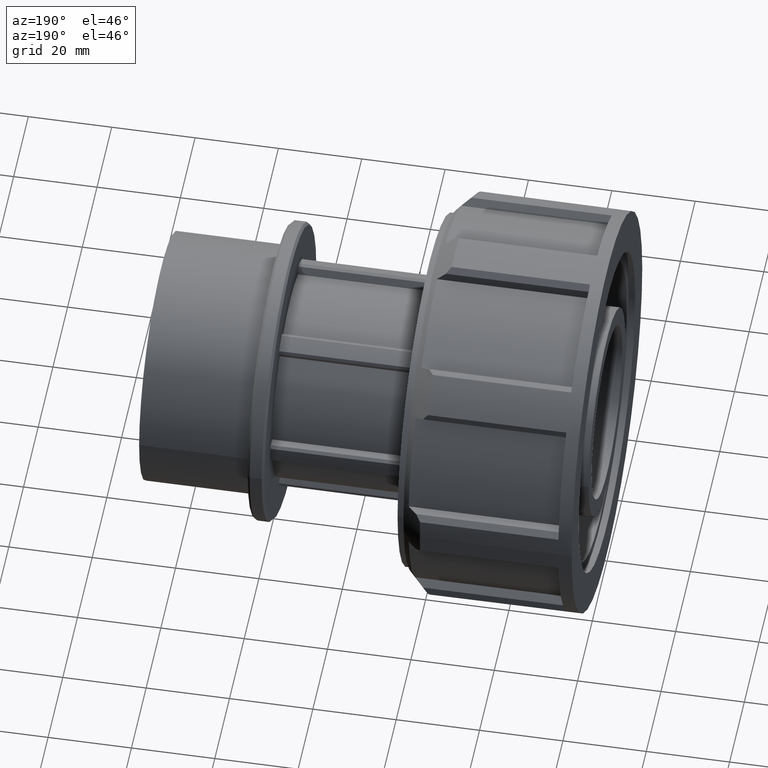
[diagram: clean part render]
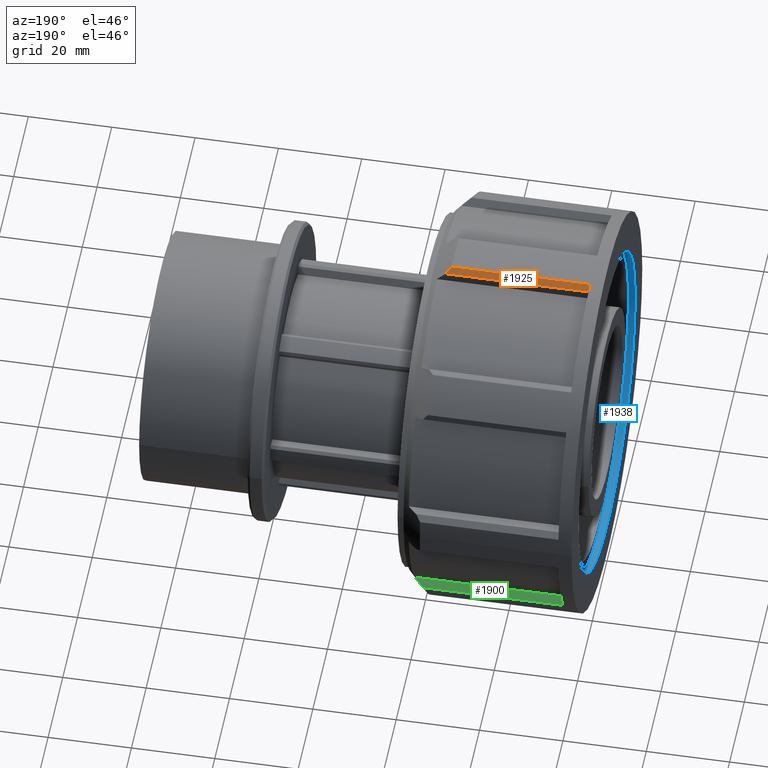
[diagram: same view with three faces highlighted in distinct colors, each labeled with its STEP entity id]
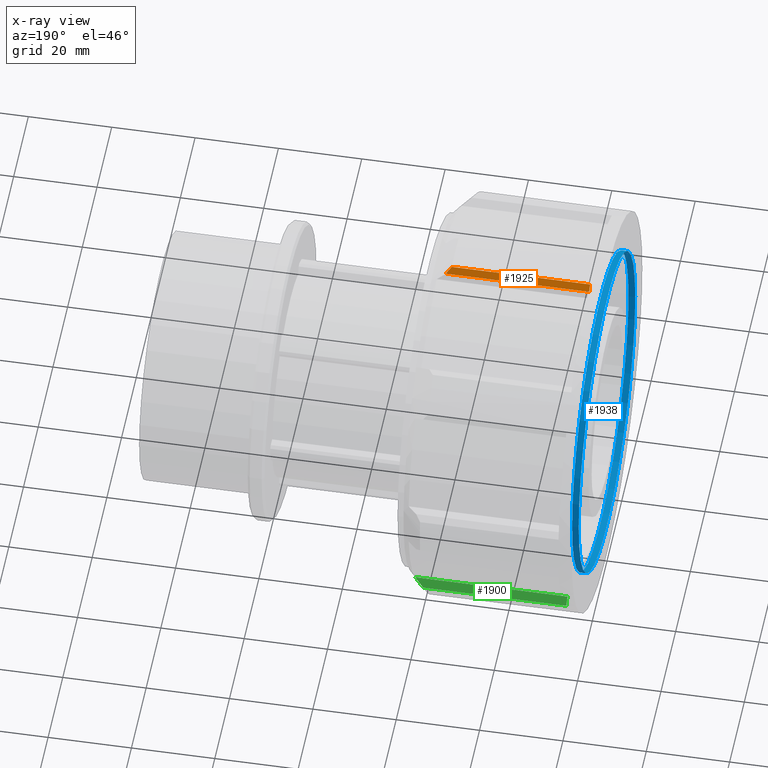
[diagram: x-ray of the same camera — body ghosted, the three highlighted faces saturated]
A machine part, auxiliary view with three faces highlighted in distinct colors.
The next image is the same camera in x-ray (body ghosted, the three faces saturated) — at least one of them is partly hidden behind the body in this view.
Their STEP definitions:

[orange] entity #1925 — the highlighted planar face has unit normal (0, 0.7456, 0.6664).
#19=(
BOUNDED_CURVE()
B_SPLINE_CURVE(2,(#2937,#2938,#2939),.UNSPECIFIED.,.F.,.F.)
B_SPLINE_CURVE_WITH_KNOTS((3,3),(0.,0.2014605576497),.UNSPECIFIED.)
CURVE()
GEOMETRIC_REPRESENTATION_ITEM()
RATIONAL_B_SPLINE_CURVE((1.,1.00078288374613,1.0012142177064))
REPRESENTATION_ITEM('')
);
#271=FACE_OUTER_BOUND('',#388,.T.);
#388=EDGE_LOOP('',(#1713,#1714,#1715,#1716));
#523=LINE('',#3112,#687);
#581=LINE('',#3242,#745);
#585=LINE('',#3261,#749);
#687=VECTOR('',#2435,33.21588);
#745=VECTOR('',#2575,1.7779472105731);
#749=VECTOR('',#2605,34.398694868908);
#838=VERTEX_POINT('',#2932);
#839=VERTEX_POINT('',#2936);
#894=VERTEX_POINT('',#3111);
#925=VERTEX_POINT('',#3241);
#1065=EDGE_CURVE('',#839,#838,#19,.T.);
#1128=EDGE_CURVE('',#894,#839,#523,.T.);
#1193=EDGE_CURVE('',#925,#894,#581,.F.);
#1200=EDGE_CURVE('',#838,#925,#585,.T.);
#1713=ORIENTED_EDGE('',*,*,#1065,.T.);
#1714=ORIENTED_EDGE('',*,*,#1200,.T.);
#1715=ORIENTED_EDGE('',*,*,#1193,.T.);
#1716=ORIENTED_EDGE('',*,*,#1128,.T.);
#1827=PLANE('',#2100);
#1925=ADVANCED_FACE('',(#271),#1827,.T.);
#2100=AXIS2_PLACEMENT_3D('',#3260,#2603,#2604);
#2435=DIRECTION('',(1.,0.,0.));
#2575=DIRECTION('',(0.,0.666384713552063,-0.745608083073229));
#2603=DIRECTION('center_axis',(0.,0.745608083073229,0.666384713552063));
#2604=DIRECTION('ref_axis',(1.,0.,0.));
#2605=DIRECTION('',(-1.,0.,0.));
#2932=CARTESIAN_POINT('',(37.608694868908,5.9614,46.4360908522557));
#2936=CARTESIAN_POINT('',(36.42588,4.77660315737155,47.7617426637365));
#2937=CARTESIAN_POINT('Ctrl Pts',(36.42588,4.77660315737155,47.7617426637365));
#2938=CARTESIAN_POINT('Ctrl Pts',(37.0339568614108,5.37639156458421,47.0906482111528));
#2939=CARTESIAN_POINT('Ctrl Pts',(37.608694868908,5.9614,46.4360908522557));
#3111=CARTESIAN_POINT('',(3.21,4.77660315737155,47.7617426637365));
#3112=CARTESIAN_POINT('',(1.60500000000001,4.77660315737155,47.7617426637365));
#3241=CARTESIAN_POINT('',(3.21,5.96139999999999,46.4360908522557));
#3242=CARTESIAN_POINT('',(3.21,25.7893369163891,24.250903024758));
#3260=CARTESIAN_POINT('Origin',(1.60500000000001,5.36900157868577,47.0989167579961));
#3261=CARTESIAN_POINT('',(1.60500000000001,5.9614,46.4360908522557));

[blue] entity #1938 — the highlighted cylindrical surface (bore or boss wall) has radius 38.4 mm, axis along (1, 0, 0).
#68=FACE_BOUND('',#410,.T.);
#148=CIRCLE('',#2121,38.4);
#149=CIRCLE('',#2123,38.4);
#179=CYLINDRICAL_SURFACE('',#2122,38.4);
#284=FACE_OUTER_BOUND('',#409,.T.);
#409=EDGE_LOOP('',(#1749));
#410=EDGE_LOOP('',(#1750));
#936=VERTEX_POINT('',#3291);
#937=VERTEX_POINT('',#3294);
#1210=EDGE_CURVE('',#936,#936,#148,.T.);
#1211=EDGE_CURVE('',#937,#937,#149,.T.);
#1749=ORIENTED_EDGE('',*,*,#1211,.F.);
#1750=ORIENTED_EDGE('',*,*,#1210,.T.);
#1938=ADVANCED_FACE('',(#284,#68),#179,.F.);
#2121=AXIS2_PLACEMENT_3D('',#3292,#2647,#2648);
#2122=AXIS2_PLACEMENT_3D('',#3293,#2649,#2650);
#2123=AXIS2_PLACEMENT_3D('',#3295,#2651,#2652);
#2647=DIRECTION('center_axis',(1.,0.,0.));
#2648=DIRECTION('ref_axis',(0.,0.,-1.));
#2649=DIRECTION('center_axis',(1.,0.,0.));
#2650=DIRECTION('ref_axis',(0.,1.,0.));
#2651=DIRECTION('center_axis',(1.,0.,0.));
#2652=DIRECTION('ref_axis',(0.,0.,-1.));
#3291=CARTESIAN_POINT('',(1.605,38.4,0.));
#3292=CARTESIAN_POINT('Origin',(1.60500000000001,0.,0.));
#3293=CARTESIAN_POINT('Origin',(0.802499999999995,0.,0.));
#3294=CARTESIAN_POINT('',(0.,38.4,0.));
#3295=CARTESIAN_POINT('Origin',(0.,0.,0.));

[green] entity #1900 — the highlighted planar face has unit normal (0, 0.7071, 0.7071).
#41=(
BOUNDED_CURVE()
B_SPLINE_CURVE(2,(#3047,#3048,#3049),.UNSPECIFIED.,.F.,.F.)
B_SPLINE_CURVE_WITH_KNOTS((3,3),(4.71000135144145,5.11449200149572),
 .UNSPECIFIED.)
CURVE()
GEOMETRIC_REPRESENTATION_ITEM()
RATIONAL_B_SPLINE_CURVE((1.01111722077624,1.00826667474189,1.00484453214832))
REPRESENTATION_ITEM('')
);
#246=FACE_OUTER_BOUND('',#362,.T.);
#362=EDGE_LOOP('',(#1599,#1600,#1601,#1602));
#534=LINE('',#3135,#698);
#561=LINE('',#3190,#725);
#562=LINE('',#3191,#726);
#698=VECTOR('',#2458,34.398694868908);
#725=VECTOR('',#2513,2.19593590180373);
#726=VECTOR('',#2514,36.57588);
#871=VERTEX_POINT('',#3042);
#872=VERTEX_POINT('',#3046);
#900=VERTEX_POINT('',#3133);
#914=VERTEX_POINT('',#3189);
#1098=EDGE_CURVE('',#871,#872,#41,.T.);
#1140=EDGE_CURVE('',#900,#871,#534,.T.);
#1167=EDGE_CURVE('',#914,#900,#561,.T.);
#1168=EDGE_CURVE('',#872,#914,#562,.T.);
#1599=ORIENTED_EDGE('',*,*,#1140,.F.);
#1600=ORIENTED_EDGE('',*,*,#1167,.F.);
#1601=ORIENTED_EDGE('',*,*,#1168,.F.);
#1602=ORIENTED_EDGE('',*,*,#1098,.F.);
#1809=PLANE('',#2066);
#1900=ADVANCED_FACE('',(#246),#1809,.T.);
#2066=AXIS2_PLACEMENT_3D('',#3188,#2511,#2512);
#2458=DIRECTION('',(1.,0.,0.));
#2511=DIRECTION('center_axis',(0.,0.707106781186548,0.707106781186547));
#2512=DIRECTION('ref_axis',(0.,0.707106781186547,-0.707106781186548));
#2513=DIRECTION('',(0.,0.707106781186547,-0.707106781186548));
#2514=DIRECTION('',(-1.,0.,0.));
#3042=CARTESIAN_POINT('',(37.608694868908,37.0506210987901,-28.6199283680591));
#3046=CARTESIAN_POINT('',(39.78588,35.4978599315737,-27.0671672008427));
#3047=CARTESIAN_POINT('Ctrl Pts',(37.608694868908,37.0506210987901,-28.6199283680591));
#3048=CARTESIAN_POINT('Ctrl Pts',(38.7236502318543,36.2557583777722,-27.8250656470412));
#3049=CARTESIAN_POINT('Ctrl Pts',(39.78588,35.4978599315737,-27.0671672008427));
#3133=CARTESIAN_POINT('',(3.21,37.0506210987901,-28.6199283680591));
#3135=CARTESIAN_POINT('',(1.60500000000001,37.0506210987901,-28.6199283680591));
#3188=CARTESIAN_POINT('Origin',(41.195,33.7845813067704,-25.3538885760394));
#3189=CARTESIAN_POINT('',(3.21,35.4978599315737,-27.0671672008427));
#3190=CARTESIAN_POINT('',(3.21,30.1599638360679,-21.729271105337));
#3191=CARTESIAN_POINT('',(22.2025,35.4978599315737,-27.0671672008427));